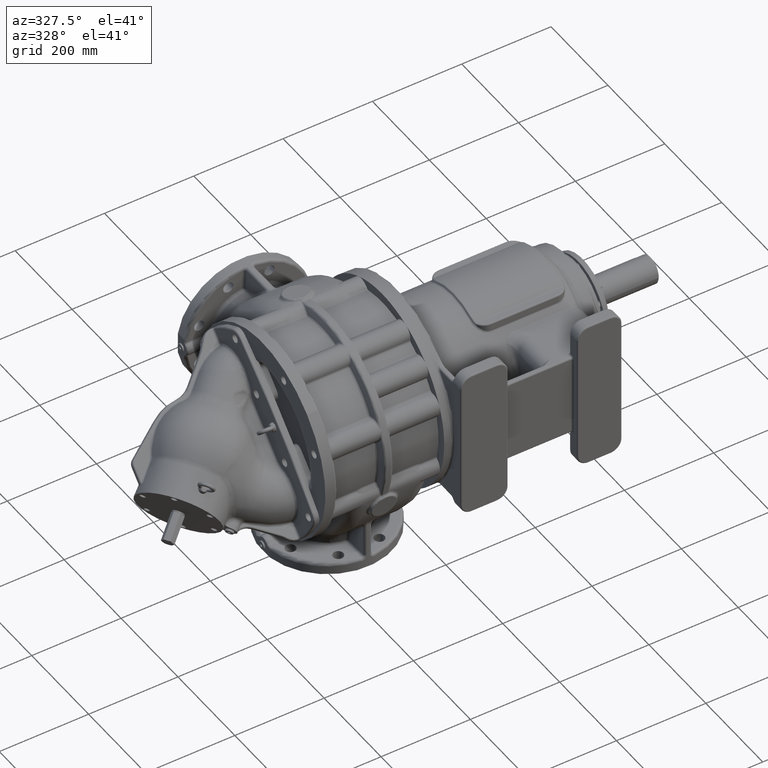
[diagram: clean part render]
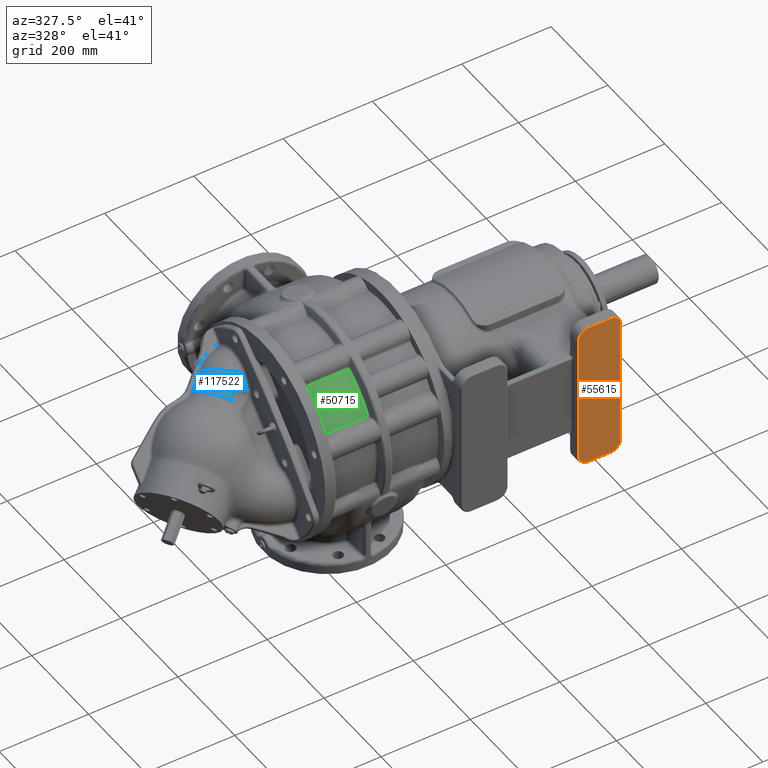
[diagram: same view with three faces highlighted in distinct colors, each labeled with its STEP entity id]
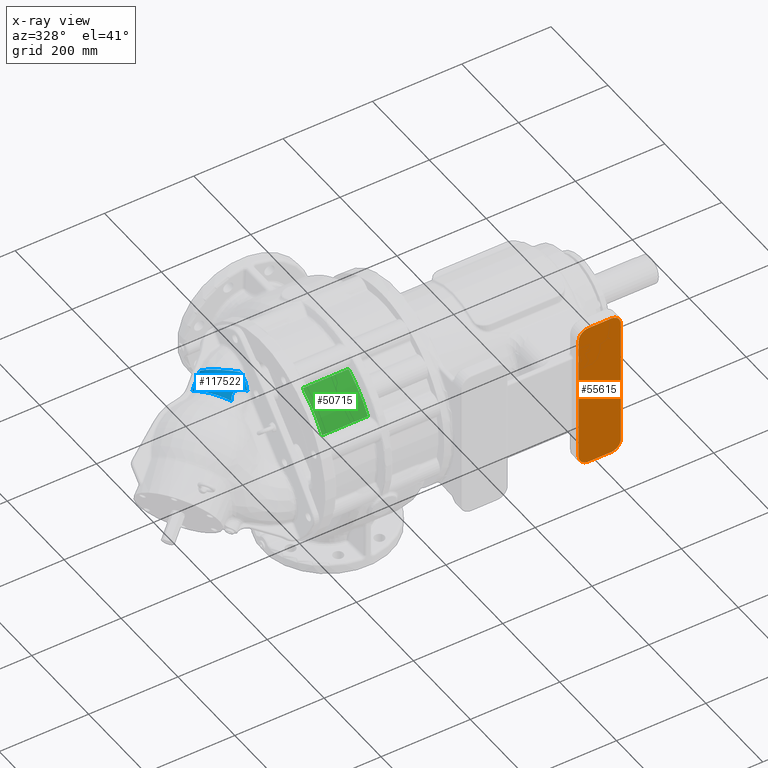
[diagram: x-ray of the same camera — body ghosted, the three highlighted faces saturated]
A machine part, auxiliary view with three faces highlighted in distinct colors.
The next image is the same camera in x-ray (body ghosted, the three faces saturated) — at least one of them is partly hidden behind the body in this view.
Their STEP definitions:

[orange] entity #55615 — the highlighted planar face has unit normal (0, -1, 0).
#5091=CARTESIAN_POINT('',(3.42E2,-2.43E2,1.45E2));
#5092=DIRECTION('',(0.E0,-1.E0,0.E0));
#5093=DIRECTION('',(1.E0,0.E0,0.E0));
#5094=AXIS2_PLACEMENT_3D('',#5091,#5092,#5093);
#5096=DIRECTION('',(0.E0,0.E0,1.E0));
#5097=VECTOR('',#5096,2.9E2);
#5098=CARTESIAN_POINT('',(3.64E2,-2.43E2,-1.45E2));
#5099=LINE('',#5098,#5097);
#5100=CARTESIAN_POINT('',(3.42E2,-2.43E2,-1.45E2));
#5101=DIRECTION('',(0.E0,-1.E0,0.E0));
#5102=DIRECTION('',(0.E0,0.E0,-1.E0));
#5103=AXIS2_PLACEMENT_3D('',#5100,#5101,#5102);
#5105=DIRECTION('',(1.E0,0.E0,0.E0));
#5106=VECTOR('',#5105,5.E1);
#5107=CARTESIAN_POINT('',(2.92E2,-2.43E2,-1.67E2));
#5108=LINE('',#5107,#5106);
#5109=CARTESIAN_POINT('',(2.92E2,-2.43E2,-1.45E2));
#5110=DIRECTION('',(0.E0,-1.E0,0.E0));
#5111=DIRECTION('',(-1.E0,0.E0,0.E0));
#5112=AXIS2_PLACEMENT_3D('',#5109,#5110,#5111);
#5114=DIRECTION('',(0.E0,0.E0,-1.E0));
#5115=VECTOR('',#5114,2.9E2);
#5116=CARTESIAN_POINT('',(2.7E2,-2.43E2,1.45E2));
#5117=LINE('',#5116,#5115);
#5118=CARTESIAN_POINT('',(2.92E2,-2.43E2,1.45E2));
#5119=DIRECTION('',(0.E0,-1.E0,0.E0));
#5120=DIRECTION('',(0.E0,0.E0,1.E0));
#5121=AXIS2_PLACEMENT_3D('',#5118,#5119,#5120);
#5123=DIRECTION('',(-1.E0,0.E0,0.E0));
#5124=VECTOR('',#5123,5.E1);
#5125=CARTESIAN_POINT('',(3.42E2,-2.43E2,1.67E2));
#5126=LINE('',#5125,#5124);
#46946=CARTESIAN_POINT('',(3.64E2,-2.43E2,1.45E2));
#46947=CARTESIAN_POINT('',(3.42E2,-2.43E2,1.67E2));
#46948=VERTEX_POINT('',#46946);
#46949=VERTEX_POINT('',#46947);
#46954=CARTESIAN_POINT('',(2.92E2,-2.43E2,1.67E2));
#46955=VERTEX_POINT('',#46954);
#46958=CARTESIAN_POINT('',(2.7E2,-2.43E2,1.45E2));
#46959=VERTEX_POINT('',#46958);
#46962=CARTESIAN_POINT('',(2.7E2,-2.43E2,-1.45E2));
#46963=VERTEX_POINT('',#46962);
#46966=CARTESIAN_POINT('',(2.92E2,-2.43E2,-1.67E2));
#46967=VERTEX_POINT('',#46966);
#46970=CARTESIAN_POINT('',(3.42E2,-2.43E2,-1.67E2));
#46971=VERTEX_POINT('',#46970);
#46974=CARTESIAN_POINT('',(3.64E2,-2.43E2,-1.45E2));
#46975=VERTEX_POINT('',#46974);
#55593=CARTESIAN_POINT('',(-3.E0,-2.43E2,0.E0));
#55594=DIRECTION('',(0.E0,-1.E0,0.E0));
#55595=DIRECTION('',(1.E0,0.E0,0.E0));
#55596=AXIS2_PLACEMENT_3D('',#55593,#55594,#55595);
#55597=PLANE('',#55596);
#55599=ORIENTED_EDGE('',*,*,#55598,.F.);
#55600=ORIENTED_EDGE('',*,*,#55583,.F.);
#55602=ORIENTED_EDGE('',*,*,#55601,.F.);
#55604=ORIENTED_EDGE('',*,*,#55603,.F.);
#55606=ORIENTED_EDGE('',*,*,#55605,.F.);
#55608=ORIENTED_EDGE('',*,*,#55607,.F.);
#55610=ORIENTED_EDGE('',*,*,#55609,.F.);
#55612=ORIENTED_EDGE('',*,*,#55611,.F.);
#55613=EDGE_LOOP('',(#55599,#55600,#55602,#55604,#55606,#55608,#55610,#55612));
#55614=FACE_OUTER_BOUND('',#55613,.F.);
#55615=ADVANCED_FACE('',(#55614),#55597,.T.);
#5095=CIRCLE('',#5094,2.2E1);
#5104=CIRCLE('',#5103,2.2E1);
#5113=CIRCLE('',#5112,2.2E1);
#5122=CIRCLE('',#5121,2.2E1);
#55583=EDGE_CURVE('',#46975,#46948,#5099,.T.);
#55598=EDGE_CURVE('',#46948,#46949,#5095,.T.);
#55601=EDGE_CURVE('',#46971,#46975,#5104,.T.);
#55603=EDGE_CURVE('',#46967,#46971,#5108,.T.);
#55605=EDGE_CURVE('',#46963,#46967,#5113,.T.);
#55607=EDGE_CURVE('',#46959,#46963,#5117,.T.);
#55609=EDGE_CURVE('',#46955,#46959,#5122,.T.);
#55611=EDGE_CURVE('',#46949,#46955,#5126,.T.);

[blue] entity #117522 — the highlighted cylindrical surface (edge-blend (fillet) strip) has radius 60.5 mm, axis along (-0.7071, -0.5, -0.5).
#34534=DIRECTION('',(7.071103438204E-1,4.999845492088E-1,5.000104121062E-1));
#34535=VECTOR('',#34534,4.293933916541E1);
#34536=CARTESIAN_POINT('',(-3.906508186997E2,7.795323040423E1,
9.232207201887E1));
#34537=LINE('',#34536,#34535);
#34538=CARTESIAN_POINT('',(-3.067088927335E2,4.207285389122E1,
1.276327744148E2));
#34539=CARTESIAN_POINT('',(-3.070646187511E2,4.222160139247E1,
1.277814046891E2));
#34540=CARTESIAN_POINT('',(-3.077956011878E2,4.250080000626E1,
1.280497601743E2));
#34541=CARTESIAN_POINT('',(-3.088598424946E2,4.297814157099E1,
1.284766161521E2));
#34542=CARTESIAN_POINT('',(-3.099352245202E2,4.345836031029E1,
1.288727851309E2));
#34543=CARTESIAN_POINT('',(-3.110086570762E2,4.395635171995E1,
1.292530665856E2));
#34544=CARTESIAN_POINT('',(-3.120821825168E2,4.446805910294E1,
1.296135744628E2));
#34545=CARTESIAN_POINT('',(-3.131537321817E2,4.499444101593E1,
1.299554442915E2));
#34546=CARTESIAN_POINT('',(-3.142225939211E2,4.553518796120E1,
1.302785665251E2));
#34547=CARTESIAN_POINT('',(-3.152880340938E2,4.609056524787E1,
1.305833421771E2));
#34548=CARTESIAN_POINT('',(-3.163493456631E2,4.666061424432E1,
1.308699749581E2));
#34549=CARTESIAN_POINT('',(-3.174059156227E2,4.724594221113E1,
1.311390870547E2));
#34550=CARTESIAN_POINT('',(-3.184571313612E2,4.784737736564E1,
1.313913997913E2));
#34551=CARTESIAN_POINT('',(-3.195034292136E2,4.846428513728E1,
1.316263171255E2));
#34552=CARTESIAN_POINT('',(-3.205450977491E2,4.909645985325E1,
1.318435647835E2));
#34553=CARTESIAN_POINT('',(-3.215817567316E2,4.974317177333E1,
1.320426414247E2));
#34554=CARTESIAN_POINT('',(-3.226127301317E2,5.040353560214E1,
1.322230794853E2));
#34555=CARTESIAN_POINT('',(-3.236374500180E2,5.107666278904E1,
1.323844599956E2));
#34556=CARTESIAN_POINT('',(-3.246551712507E2,5.176168396578E1,
1.325264984174E2));
#34557=CARTESIAN_POINT('',(-3.256659922437E2,5.245771041841E1,
1.326487331910E2));
#34558=CARTESIAN_POINT('',(-3.266690599502E2,5.316541831599E1,
1.327519067988E2));
#34559=CARTESIAN_POINT('',(-3.276630509262E2,5.388599537169E1,
1.328371435085E2));
#34560=CARTESIAN_POINT('',(-3.286482698861E2,5.461868950379E1,
1.329039489710E2));
#34561=CARTESIAN_POINT('',(-3.296242558782E2,5.536303707226E1,
1.329522546131E2));
#34562=CARTESIAN_POINT('',(-3.305905847198E2,5.611837647907E1,
1.329819113915E2));
#34563=CARTESIAN_POINT('',(-3.315468136055E2,5.688411404080E1,
1.329928493405E2));
#34564=CARTESIAN_POINT('',(-3.324924867673E2,5.765959228534E1,
1.329850141923E2));
#34565=CARTESIAN_POINT('',(-3.334274384647E2,5.844459306058E1,
1.329584637601E2));
#34566=CARTESIAN_POINT('',(-3.343518568514E2,5.923859478571E1,
1.329129768745E2));
#34567=CARTESIAN_POINT('',(-3.352646179551E2,6.004265859664E1,
1.328495138030E2));
#34568=CARTESIAN_POINT('',(-3.361655120254E2,6.085673537279E1,
1.327681572854E2));
#34569=CARTESIAN_POINT('',(-3.370544752627E2,6.168007913485E1,
1.326686631108E2));
#34570=CARTESIAN_POINT('',(-3.379313074093E2,6.251207657670E1,
1.325509251191E2));
#34571=CARTESIAN_POINT('',(-3.387958274419E2,6.335209201818E1,
1.324148454934E2));
#34572=CARTESIAN_POINT('',(-3.396478159938E2,6.419951256206E1,
1.322603754659E2));
#34573=CARTESIAN_POINT('',(-3.404868114158E2,6.505344661295E1,
1.320875380054E2));
#34574=CARTESIAN_POINT('',(-3.413122801440E2,6.591315665020E1,
1.318964935364E2));
#34575=CARTESIAN_POINT('',(-3.421240226584E2,6.677751155192E1,
1.316871840806E2));
#34576=CARTESIAN_POINT('',(-3.429196038084E2,6.764819329321E1,
1.314614794689E2));
#34577=CARTESIAN_POINT('',(-3.436999619641E2,6.852513435511E1,
1.312189623551E2));
#34578=CARTESIAN_POINT('',(-3.444657093347E2,6.940840150298E1,
1.309593532994E2));
#34579=CARTESIAN_POINT('',(-3.452175457367E2,7.029817324939E1,
1.306822748306E2));
#34580=CARTESIAN_POINT('',(-3.459557717625E2,7.119431673379E1,
1.303874456961E2));
#34581=CARTESIAN_POINT('',(-3.466793283880E2,7.209505366020E1,
1.300751712134E2));
#34582=CARTESIAN_POINT('',(-3.473873827856E2,7.299889481582E1,
1.297458191014E2));
#34583=CARTESIAN_POINT('',(-3.480790467856E2,7.390401042790E1,
1.293998880980E2));
#34584=CARTESIAN_POINT('',(-3.487537356266E2,7.480984494478E1,
1.290379582679E2));
#34585=CARTESIAN_POINT('',(-3.494102377306E2,7.571962182636E1,
1.286612638901E2));
#34586=CARTESIAN_POINT('',(-3.500500372062E2,7.663305706081E1,
1.282688554646E2));
#34587=CARTESIAN_POINT('',(-3.506740999876E2,7.755098184593E1,
1.278600762974E2));
#34588=CARTESIAN_POINT('',(-3.512826644550E2,7.847290738871E1,
1.274346201163E2));
#34589=CARTESIAN_POINT('',(-3.518748049282E2,7.939678098976E1,
1.269930760461E2));
#34590=CARTESIAN_POINT('',(-3.524499468631E2,8.032086901053E1,
1.265359572775E2));
#34591=CARTESIAN_POINT('',(-3.530071895777E2,8.124340361082E1,
1.260641746935E2));
#34592=CARTESIAN_POINT('',(-3.535469130517E2,8.216277128685E1,
1.255778287095E2));
#34593=CARTESIAN_POINT('',(-3.540670742470E2,8.308083334975E1,
1.250786238472E2));
#34594=CARTESIAN_POINT('',(-3.545666427217E2,8.399848738462E1,
1.245674979326E2));
#34595=CARTESIAN_POINT('',(-3.550463753861E2,8.491390302421E1,
1.240443520491E2));
#34596=CARTESIAN_POINT('',(-3.555083601357E2,8.582972347216E1,
1.235072785911E2));
#34597=CARTESIAN_POINT('',(-3.559557550050E2,8.675118395973E1,
1.229525408125E2));
#34598=CARTESIAN_POINT('',(-3.563917068043E2,8.768503261487E1,
1.223751428780E2));
#34599=CARTESIAN_POINT('',(-3.568105436447E2,8.861918344843E1,
1.217816738012E2));
#34600=CARTESIAN_POINT('',(-3.572053312216E2,8.953716647749E1,
1.211827926562E2));
#34601=CARTESIAN_POINT('',(-3.575723233381E2,9.042548033010E1,
1.205876539272E2));
#34602=CARTESIAN_POINT('',(-3.579136512539E2,9.129231143040E1,
1.199943340797E2));
#34603=CARTESIAN_POINT('',(-3.582311482574E2,9.214378557624E1,
1.194008046078E2));
#34604=CARTESIAN_POINT('',(-3.585284263323E2,9.298417910465E1,
1.188033145924E2));
#34605=CARTESIAN_POINT('',(-3.588074256345E2,9.381677311119E1,
1.181994840988E2));
#34606=CARTESIAN_POINT('',(-3.590700922632E2,9.464548681965E1,
1.175861781740E2));
#34607=CARTESIAN_POINT('',(-3.593172814880E2,9.547221640319E1,
1.169616633775E2));
#34608=CARTESIAN_POINT('',(-3.595477779505E2,9.629205776939E1,
1.163294570679E2));
#34609=CARTESIAN_POINT('',(-3.597609244120E2,9.710118617386E1,
1.156926051168E2));
#34610=CARTESIAN_POINT('',(-3.599560838882E2,9.789567203119E1,
1.150547047157E2));
#34611=CARTESIAN_POINT('',(-3.601332463771E2,9.867180336170E1,
1.144189823418E2));
#34612=CARTESIAN_POINT('',(-3.602385099786E2,9.917460279125E1,
1.140002277227E2));
#34613=CARTESIAN_POINT('',(-3.602880498761E2,9.942260832752E1,
1.137920008323E2));
#34615=CARTESIAN_POINT('',(-3.030927732645E2,3.115144953663E1,
1.141212738427E2));
#34616=CARTESIAN_POINT('',(-3.031903934249E2,3.141022214584E1,
1.145220706245E2));
#34617=CARTESIAN_POINT('',(-3.033863126996E2,3.193568165323E1,
1.153203282100E2));
#34618=CARTESIAN_POINT('',(-3.036821890587E2,3.274761393807E1,
1.165074665389E2));
#34619=CARTESIAN_POINT('',(-3.039798575750E2,3.358280848095E1,
1.176833801967E2));
#34620=CARTESIAN_POINT('',(-3.042791177896E2,3.444088160748E1,
1.188473107145E2));
#34621=CARTESIAN_POINT('',(-3.045797655073E2,3.532136186912E1,
1.199984301064E2));
#34622=CARTESIAN_POINT('',(-3.048816423679E2,3.622374280110E1,
1.211359327058E2));
#34623=CARTESIAN_POINT('',(-3.051845771500E2,3.714750550953E1,
1.222590462460E2));
#34624=CARTESIAN_POINT('',(-3.054884241163E2,3.809211395671E1,
1.233670289695E2));
#34625=CARTESIAN_POINT('',(-3.057929505566E2,3.905711023773E1,
1.244592655265E2));
#34626=CARTESIAN_POINT('',(-3.060980212404E2,4.004203316629E1,
1.255351675417E2));
#34627=CARTESIAN_POINT('',(-3.064031092387E2,4.104647230362E1,
1.265942504749E2));
#34628=CARTESIAN_POINT('',(-3.066071404314E2,4.172863182140E1,
1.272885318209E2));
#34629=CARTESIAN_POINT('',(-3.067088925559E2,4.207285370914E1,
1.276327742327E2));
#34631=CARTESIAN_POINT('',(-3.042684779075E2,1.903208250258E1,
9.278168293418E1));
#34632=CARTESIAN_POINT('',(-3.042388044406E2,1.926790211461E1,
9.332343437183E1));
#34633=CARTESIAN_POINT('',(-3.041790978671E2,1.975092645191E1,
9.440893556278E1));
#34634=CARTESIAN_POINT('',(-3.040894997228E2,2.051053852759E1,
9.604445967268E1));
#34635=CARTESIAN_POINT('',(-3.039994198267E2,2.130500300384E1,
9.768520229105E1));
#34636=CARTESIAN_POINT('',(-3.039090535732E2,2.213441375947E1,
9.933025910954E1));
#34637=CARTESIAN_POINT('',(-3.038184331646E2,2.299873077875E1,
1.009784153331E2));
#34638=CARTESIAN_POINT('',(-3.037276308518E2,2.389787793692E1,
1.026284849995E2));
#34639=CARTESIAN_POINT('',(-3.036367009669E2,2.483173952388E1,
1.042792671450E2));
#34640=CARTESIAN_POINT('',(-3.035457152876E2,2.580009950618E1,
1.059294628948E2));
#34641=CARTESIAN_POINT('',(-3.034547511255E2,2.680267377285E1,
1.075777397325E2));
#34642=CARTESIAN_POINT('',(-3.033638917600E2,2.783908482242E1,
1.092226936265E2));
#34643=CARTESIAN_POINT('',(-3.032732126904E2,2.890882540439E1,
1.108628074278E2));
#34644=CARTESIAN_POINT('',(-3.031827859053E2,3.001142915121E1,
1.124967134940E2));
#34645=CARTESIAN_POINT('',(-3.031227381170E2,3.076785407510E1,
1.135806603986E2));
#34646=CARTESIAN_POINT('',(-3.030927732645E2,3.115144953663E1,
1.141212738427E2));
#34648=CARTESIAN_POINT('',(-3.042684779075E2,1.903208250258E1,
9.278168293418E1));
#34649=CARTESIAN_POINT('',(-3.042955906449E2,1.906653093939E1,
9.289251834136E1));
#34650=CARTESIAN_POINT('',(-3.043529508839E2,1.913397855998E1,
9.311225685820E1));
#34651=CARTESIAN_POINT('',(-3.044491426580E2,1.923092538356E1,
9.343691025696E1));
#34652=CARTESIAN_POINT('',(-3.045541740988E2,1.932479656543E1,
9.375812332876E1));
#34653=CARTESIAN_POINT('',(-3.046682618141E2,1.941602510569E1,
9.407695167546E1));
#34654=CARTESIAN_POINT('',(-3.047917096834E2,1.950503447113E1,
9.439449847771E1));
#34655=CARTESIAN_POINT('',(-3.049251377442E2,1.959210925520E1,
9.471175575334E1));
#34656=CARTESIAN_POINT('',(-3.050693722887E2,1.967745460104E1,
9.502964847902E1));
#34657=CARTESIAN_POINT('',(-3.052256477570E2,1.976102245818E1,
9.534880876780E1));
#34658=CARTESIAN_POINT('',(-3.053941455056E2,1.984335936096E1,
9.567020691695E1));
#34659=CARTESIAN_POINT('',(-3.055757083358E2,1.992480531280E1,
9.599484067350E1));
#34660=CARTESIAN_POINT('',(-3.057709790869E2,2.000548942336E1,
9.632299789504E1));
#34661=CARTESIAN_POINT('',(-3.059796447633E2,2.008509782183E1,
9.665325312724E1));
#34662=CARTESIAN_POINT('',(-3.062013871319E2,2.016334417138E1,
9.698430856448E1));
#34663=CARTESIAN_POINT('',(-3.064359979087E2,2.023993366206E1,
9.731500559703E1));
#34664=CARTESIAN_POINT('',(-3.066844777318E2,2.031515039611E1,
9.764626622756E1));
#34665=CARTESIAN_POINT('',(-3.069478453032E2,2.038922429139E1,9.797881058E1));
#34666=CARTESIAN_POINT('',(-3.072271671921E2,2.046237847475E1,
9.831328402874E1));
#34667=CARTESIAN_POINT('',(-3.075234289026E2,2.053479050129E1,
9.865010922279E1));
#34668=CARTESIAN_POINT('',(-3.077330305772E2,2.058275406557E1,
9.887663949249E1));
#34669=CARTESIAN_POINT('',(-3.078408724135E2,2.060664155621E1,
9.899027769447E1));
#34671=CARTESIAN_POINT('',(-3.078408724135E2,2.060664155621E1,
9.899027769447E1));
#34672=CARTESIAN_POINT('',(-3.079336141916E2,2.062718862546E1,
9.908800711866E1));
#34673=CARTESIAN_POINT('',(-3.081223401599E2,2.066731194290E1,
9.928161794050E1));
#34674=CARTESIAN_POINT('',(-3.084148352703E2,2.072466177117E1,
9.956639456787E1));
#34675=CARTESIAN_POINT('',(-3.087172264942E2,2.077935496516E1,
9.984607544213E1));
#34676=CARTESIAN_POINT('',(-3.090298644308E2,2.083147727223E1,
1.001209178080E2));
#34677=CARTESIAN_POINT('',(-3.093532137775E2,2.088106689451E1,
1.003911300413E2));
#34678=CARTESIAN_POINT('',(-3.096877545292E2,2.092808677682E1,
1.006567673266E2));
#34679=CARTESIAN_POINT('',(-3.100341747306E2,2.097237613439E1,
1.009177576013E2));
#34680=CARTESIAN_POINT('',(-3.103931109430E2,2.101398427456E1,
1.011743396282E2));
#34681=CARTESIAN_POINT('',(-3.107652686189E2,2.105291482313E1,
1.014266699620E2));
#34682=CARTESIAN_POINT('',(-3.111513426833E2,2.108915048755E1,
1.016748281157E2));
#34683=CARTESIAN_POINT('',(-3.115519235832E2,2.112266588146E1,
1.019187975328E2));
#34684=CARTESIAN_POINT('',(-3.119674782908E2,2.115341552263E1,
1.021584479774E2));
#34685=CARTESIAN_POINT('',(-3.123986771725E2,2.118117636807E1,
1.023934325248E2));
#34686=CARTESIAN_POINT('',(-3.128460260132E2,2.120583803717E1,
1.026235078642E2));
#34687=CARTESIAN_POINT('',(-3.133119205516E2,2.122730225116E1,
1.028492014153E2));
#34688=CARTESIAN_POINT('',(-3.137984256890E2,2.124594192961E1,
1.030715128649E2));
#34689=CARTESIAN_POINT('',(-3.143082603282E2,2.126151269394E1,
1.032905968958E2));
#34690=CARTESIAN_POINT('',(-3.148438780832E2,2.127362223671E1,
1.035061704179E2));
#34691=CARTESIAN_POINT('',(-3.152203916246E2,2.127923794971E1,
1.036476532516E2));
#34692=CARTESIAN_POINT('',(-3.154133901481E2,2.128139557583E1,
1.037176145127E2));
#34694=CARTESIAN_POINT('',(-3.154133901481E2,2.128139557583E1,
1.037176145127E2));
#34695=CARTESIAN_POINT('',(-3.156552650206E2,2.128420874778E1,
1.038054557819E2));
#34696=CARTESIAN_POINT('',(-3.161553290170E2,2.128920489353E1,
1.039812726291E2));
#34697=CARTESIAN_POINT('',(-3.169553850840E2,2.129501520162E1,
1.042440055133E2));
#34698=CARTESIAN_POINT('',(-3.178043161464E2,2.129920879683E1,
1.045034460028E2));
#34699=CARTESIAN_POINT('',(-3.187024157137E2,2.130178296226E1,
1.047576765499E2));
#34700=CARTESIAN_POINT('',(-3.196477239289E2,2.130319867332E1,
1.050048467128E2));
#34701=CARTESIAN_POINT('',(-3.206410338694E2,2.130351966183E1,
1.052433822930E2));
#34702=CARTESIAN_POINT('',(-3.216857995910E2,2.130339902534E1,
1.054729781398E2));
#34703=CARTESIAN_POINT('',(-3.227845306907E2,2.130314011110E1,
1.056923847324E2));
#34704=CARTESIAN_POINT('',(-3.239398432124E2,2.130316280675E1,
1.059003379142E2));
#34705=CARTESIAN_POINT('',(-3.251542626095E2,2.130423471264E1,
1.060957569659E2));
#34706=CARTESIAN_POINT('',(-3.264301765449E2,2.130676845935E1,
1.062768867941E2));
#34707=CARTESIAN_POINT('',(-3.273235969893E2,2.130994902729E1,
1.063871073253E2));
#34708=CARTESIAN_POINT('',(-3.277808615368E2,2.131203307466E1,
1.064392253887E2));
#34710=CARTESIAN_POINT('',(-3.277808615368E2,2.131203307466E1,
1.064392253887E2));
#34711=CARTESIAN_POINT('',(-3.279198133208E2,2.131261198639E1,
1.064549991585E2));
#34712=CARTESIAN_POINT('',(-3.281970571268E2,2.131176481380E1,
1.064832960463E2));
#34713=CARTESIAN_POINT('',(-3.286107844559E2,2.130435273577E1,
1.065160465191E2));
#34714=CARTESIAN_POINT('',(-3.290227810338E2,2.129078333382E1,
1.065393455670E2));
#34715=CARTESIAN_POINT('',(-3.294333075251E2,2.127097138048E1,
1.065533226514E2));
#34716=CARTESIAN_POINT('',(-3.298426463393E2,2.124483114156E1,
1.065580976654E2));
#34717=CARTESIAN_POINT('',(-3.302511264003E2,2.121224819641E1,
1.065537494282E2));
#34718=CARTESIAN_POINT('',(-3.306588006747E2,2.117312013225E1,
1.065403384783E2));
#34719=CARTESIAN_POINT('',(-3.310653457152E2,2.112736135600E1,
1.065179138245E2));
#34720=CARTESIAN_POINT('',(-3.314706087061E2,2.107501952389E1,
1.064866800349E2));
#34721=CARTESIAN_POINT('',(-3.318741688675E2,2.101600835376E1,
1.064466747988E2));
#34722=CARTESIAN_POINT('',(-3.322754814477E2,2.095029781075E1,
1.063979917724E2));
#34723=CARTESIAN_POINT('',(-3.326739937503E2,2.087789538708E1,
1.063407660517E2));
#34724=CARTESIAN_POINT('',(-3.330696568017E2,2.079874426331E1,
1.062750871820E2));
#34725=CARTESIAN_POINT('',(-3.334624993800E2,2.071275968188E1,
1.062010114953E2));
#34726=CARTESIAN_POINT('',(-3.338525063506E2,2.061989081781E1,
1.061186222835E2));
#34727=CARTESIAN_POINT('',(-3.342390474235E2,2.052026964766E1,
1.060281658082E2));
#34728=CARTESIAN_POINT('',(-3.346214135786E2,2.041394015616E1,
1.059297915510E2));
#34729=CARTESIAN_POINT('',(-3.349991281702E2,2.030097938661E1,
1.058236899159E2));
#34730=CARTESIAN_POINT('',(-3.353724687372E2,2.018125359260E1,
1.057098479721E2));
#34731=CARTESIAN_POINT('',(-3.357416275697E2,2.005462851879E1,
1.055882403584E2));
#34732=CARTESIAN_POINT('',(-3.361067058350E2,1.992103461006E1,
1.054588981219E2));
#34733=CARTESIAN_POINT('',(-3.364675469238E2,1.978047713136E1,
1.053219157227E2));
#34734=CARTESIAN_POINT('',(-3.368240833803E2,1.963284077850E1,
1.051772586531E2));
#34735=CARTESIAN_POINT('',(-3.371757186325E2,1.947826581260E1,
1.050251385731E2));
#34736=CARTESIAN_POINT('',(-3.375215654159E2,1.931706969494E1,
1.048659380644E2));
#34737=CARTESIAN_POINT('',(-3.378607534579E2,1.914968529130E1,
1.047001517772E2));
#34738=CARTESIAN_POINT('',(-3.381935030536E2,1.897602926421E1,
1.045277554238E2));
#34739=CARTESIAN_POINT('',(-3.385201897059E2,1.879578573694E1,
1.043484805958E2));
#34740=CARTESIAN_POINT('',(-3.388411376392E2,1.860867609294E1,
1.041620877823E2));
#34741=CARTESIAN_POINT('',(-3.391562960523E2,1.841463037510E1,
1.039685366626E2));
#34742=CARTESIAN_POINT('',(-3.394656377614E2,1.821361093138E1,
1.037678115618E2));
#34743=CARTESIAN_POINT('',(-3.397689963770E2,1.800565419283E1,
1.035599617281E2));
#34744=CARTESIAN_POINT('',(-3.400655116924E2,1.779125274480E1,
1.033454831312E2));
#34745=CARTESIAN_POINT('',(-3.403542984698E2,1.757098753553E1,
1.031249521362E2));
#34746=CARTESIAN_POINT('',(-3.406349727167E2,1.734507252947E1,
1.028985686406E2));
#34747=CARTESIAN_POINT('',(-3.409081181823E2,1.711294140152E1,
1.026657410418E2));
#34748=CARTESIAN_POINT('',(-3.411742284926E2,1.687407239501E1,
1.024259117576E2));
#34749=CARTESIAN_POINT('',(-3.414333756367E2,1.662834983141E1,
1.021789207275E2));
#34750=CARTESIAN_POINT('',(-3.416850858539E2,1.637616885934E1,
1.019251110272E2));
#34751=CARTESIAN_POINT('',(-3.419288529662E2,1.611787777714E1,
1.016647674174E2));
#34752=CARTESIAN_POINT('',(-3.421643184922E2,1.585356385843E1,
1.013978989549E2));
#34753=CARTESIAN_POINT('',(-3.423912463811E2,1.558318699442E1,
1.011243735225E2));
#34754=CARTESIAN_POINT('',(-3.426095920795E2,1.530681064680E1,
1.008441569310E2));
#34755=CARTESIAN_POINT('',(-3.428194398881E2,1.502436090829E1,
1.005570649187E2));
#34756=CARTESIAN_POINT('',(-3.430207702209E2,1.473572407097E1,
1.002628570084E2));
#34757=CARTESIAN_POINT('',(-3.432133517705E2,1.444076044861E1,
9.996124463820E1));
#34758=CARTESIAN_POINT('',(-3.433968361985E2,1.413958815680E1,
9.965218732050E1));
#34759=CARTESIAN_POINT('',(-3.435709309328E2,1.383238134983E1,
9.933568944853E1));
#34760=CARTESIAN_POINT('',(-3.437354882415E2,1.351932217412E1,
9.901175514070E1));
#34761=CARTESIAN_POINT('',(-3.438903212163E2,1.320026689973E1,
9.868002723356E1));
#34762=CARTESIAN_POINT('',(-3.440351912111E2,1.287507247413E1,
9.834012429093E1));
#34763=CARTESIAN_POINT('',(-3.441699100983E2,1.254383258540E1,
9.799189715958E1));
#34764=CARTESIAN_POINT('',(-3.442942489789E2,1.220696645737E1,
9.763552802287E1));
#34765=CARTESIAN_POINT('',(-3.444077564764E2,1.186479294692E1,
9.727106450087E1));
#34766=CARTESIAN_POINT('',(-3.445098764830E2,1.151775590599E1,
9.689866356124E1));
#34767=CARTESIAN_POINT('',(-3.446003937456E2,1.116645250709E1,
9.651865760935E1));
#34768=CARTESIAN_POINT('',(-3.446790949213E2,1.081149439434E1,
9.613139043364E1));
#34769=CARTESIAN_POINT('',(-3.447455822856E2,1.045351150153E1,
9.573720270339E1));
#34770=CARTESIAN_POINT('',(-3.447815303389E2,1.021344766005E1,
9.547023852911E1));
#34771=CARTESIAN_POINT('',(-3.447973353312E2,1.009305135787E1,
9.533563299592E1));
#34773=CARTESIAN_POINT('',(-3.484784450716E2,5.531727983645E1,
5.531727983646E1));
#34774=DIRECTION('',(-7.071067811866E-1,-5.E-1,-5.E-1));
#34775=DIRECTION('',(6.084478909683E-2,-7.475079087391E-1,6.614603827987E-1));
#34776=AXIS2_PLACEMENT_3D('',#34773,#34774,#34775);
#34778=CARTESIAN_POINT('',(-3.602879678191E2,9.942223654017E1,
1.137921886905E2));
#43099=CARTESIAN_POINT('',(-3.067088925559E2,4.207285370914E1,
1.276327742327E2));
#49184=VERTEX_POINT('',#34631);
#49185=VERTEX_POINT('',#34646);
#49187=VERTEX_POINT('',#43099);
#49194=VERTEX_POINT('',#34778);
#49197=CARTESIAN_POINT('',(-3.906508186997E2,7.795323040423E1,
9.232207201887E1));
#49198=VERTEX_POINT('',#49197);
#49294=VERTEX_POINT('',#34694);
#49295=VERTEX_POINT('',#34708);
#49296=VERTEX_POINT('',#34671);
#49300=VERTEX_POINT('',#34771);
#117499=CARTESIAN_POINT('',(-2.674332078832E2,1.126249166352E2,
1.126249166352E2));
#117500=DIRECTION('',(-7.071067811866E-1,-5.E-1,-5.E-1));
#117501=DIRECTION('',(7.071067811865E-1,-5.E-1,-5.E-1));
#117502=AXIS2_PLACEMENT_3D('',#117499,#117500,#117501);
#117503=CYLINDRICAL_SURFACE('',#117502,6.05E1);
#117504=ORIENTED_EDGE('',*,*,#117490,.T.);
#117506=ORIENTED_EDGE('',*,*,#117505,.F.);
#117508=ORIENTED_EDGE('',*,*,#117507,.F.);
#117510=ORIENTED_EDGE('',*,*,#117509,.F.);
#117512=ORIENTED_EDGE('',*,*,#117511,.T.);
#117514=ORIENTED_EDGE('',*,*,#117513,.T.);
#117516=ORIENTED_EDGE('',*,*,#117515,.T.);
#117518=ORIENTED_EDGE('',*,*,#117517,.T.);
#117519=ORIENTED_EDGE('',*,*,#117420,.T.);
#117520=EDGE_LOOP('',(#117504,#117506,#117508,#117510,#117512,#117514,#117516,
#117518,#117519));
#117521=FACE_OUTER_BOUND('',#117520,.F.);
#117522=ADVANCED_FACE('',(#117521),#117503,.T.);
#34614=B_SPLINE_CURVE_WITH_KNOTS('',3,(#34538,#34539,#34540,#34541,#34542,
#34543,#34544,#34545,#34546,#34547,#34548,#34549,#34550,#34551,#34552,#34553,
#34554,#34555,#34556,#34557,#34558,#34559,#34560,#34561,#34562,#34563,#34564,
#34565,#34566,#34567,#34568,#34569,#34570,#34571,#34572,#34573,#34574,#34575,
#34576,#34577,#34578,#34579,#34580,#34581,#34582,#34583,#34584,#34585,#34586,
#34587,#34588,#34589,#34590,#34591,#34592,#34593,#34594,#34595,#34596,#34597,
#34598,#34599,#34600,#34601,#34602,#34603,#34604,#34605,#34606,#34607,#34608,
#34609,#34610,#34611,#34612,#34613),.UNSPECIFIED.,.F.,.F.,(4,1,1,1,1,1,1,1,1,1,
1,1,1,1,1,1,1,1,1,1,1,1,1,1,1,1,1,1,1,1,1,1,1,1,1,1,1,1,1,1,1,1,1,1,1,1,1,1,1,1,
1,1,1,1,1,1,1,1,1,1,1,1,1,1,1,1,1,1,1,1,1,1,1,4),(0.E0,1.369863013699E-2,
2.739726027397E-2,4.109589041096E-2,5.479452054795E-2,6.849315068493E-2,
8.219178082192E-2,9.589041095890E-2,1.095890410959E-1,1.232876712329E-1,
1.369863013699E-1,1.506849315068E-1,1.643835616438E-1,1.780821917808E-1,
1.917808219178E-1,2.054794520548E-1,2.191780821918E-1,2.328767123288E-1,
2.465753424658E-1,2.602739726027E-1,2.739726027397E-1,2.876712328767E-1,
3.013698630137E-1,3.150684931507E-1,3.287671232877E-1,3.424657534247E-1,
3.561643835616E-1,3.698630136986E-1,3.835616438356E-1,3.972602739726E-1,
4.109589041096E-1,4.246575342466E-1,4.383561643836E-1,4.520547945205E-1,
4.657534246575E-1,4.794520547945E-1,4.931506849315E-1,5.068493150685E-1,
5.205479452055E-1,5.342465753425E-1,5.479452054795E-1,5.616438356164E-1,
5.753424657534E-1,5.890410958904E-1,6.027397260274E-1,6.164383561644E-1,
6.301369863014E-1,6.438356164384E-1,6.575342465753E-1,6.712328767123E-1,
6.849315068493E-1,6.986301369863E-1,7.123287671233E-1,7.260273972603E-1,
7.397260273973E-1,7.534246575342E-1,7.671232876712E-1,7.808219178082E-1,
7.945205479452E-1,8.082191780822E-1,8.219178082192E-1,8.356164383562E-1,
8.493150684932E-1,8.630136986301E-1,8.767123287671E-1,8.904109589041E-1,
9.041095890411E-1,9.178082191781E-1,9.315068493151E-1,9.452054794521E-1,
9.589041095890E-1,9.726027397260E-1,9.863013698630E-1,1.E0),.UNSPECIFIED.);
#34630=B_SPLINE_CURVE_WITH_KNOTS('',3,(#34615,#34616,#34617,#34618,#34619,
#34620,#34621,#34622,#34623,#34624,#34625,#34626,#34627,#34628,#34629),
.UNSPECIFIED.,.F.,.F.,(4,1,1,1,1,1,1,1,1,1,1,1,4),(0.E0,8.333333333333E-2,
1.666666666667E-1,2.5E-1,3.333333333333E-1,4.166666666667E-1,5.E-1,
5.833333333333E-1,6.666666666667E-1,7.5E-1,8.333333333333E-1,9.166666666667E-1,
1.E0),.UNSPECIFIED.);
#34647=B_SPLINE_CURVE_WITH_KNOTS('',3,(#34631,#34632,#34633,#34634,#34635,
#34636,#34637,#34638,#34639,#34640,#34641,#34642,#34643,#34644,#34645,#34646),
.UNSPECIFIED.,.F.,.F.,(4,1,1,1,1,1,1,1,1,1,1,1,1,4),(0.E0,7.692307692308E-2,
1.538461538462E-1,2.307692307692E-1,3.076923076923E-1,3.846153846154E-1,
4.615384615385E-1,5.384615384615E-1,6.153846153846E-1,6.923076923077E-1,
7.692307692308E-1,8.461538461538E-1,9.230769230769E-1,1.E0),.UNSPECIFIED.);
#34670=B_SPLINE_CURVE_WITH_KNOTS('',3,(#34648,#34649,#34650,#34651,#34652,
#34653,#34654,#34655,#34656,#34657,#34658,#34659,#34660,#34661,#34662,#34663,
#34664,#34665,#34666,#34667,#34668,#34669),.UNSPECIFIED.,.F.,.F.,(4,1,1,1,1,1,1,
1,1,1,1,1,1,1,1,1,1,1,1,4),(0.E0,5.263157894737E-2,1.052631578947E-1,
1.578947368421E-1,2.105263157895E-1,2.631578947368E-1,3.157894736842E-1,
3.684210526316E-1,4.210526315789E-1,4.736842105263E-1,5.263157894737E-1,
5.789473684211E-1,6.315789473684E-1,6.842105263158E-1,7.368421052632E-1,
7.894736842105E-1,8.421052631579E-1,8.947368421053E-1,9.473684210526E-1,1.E0),
.UNSPECIFIED.);
#34693=B_SPLINE_CURVE_WITH_KNOTS('',3,(#34671,#34672,#34673,#34674,#34675,
#34676,#34677,#34678,#34679,#34680,#34681,#34682,#34683,#34684,#34685,#34686,
#34687,#34688,#34689,#34690,#34691,#34692),.UNSPECIFIED.,.F.,.F.,(4,1,1,1,1,1,1,
1,1,1,1,1,1,1,1,1,1,1,1,4),(0.E0,5.263157894737E-2,1.052631578947E-1,
1.578947368421E-1,2.105263157895E-1,2.631578947368E-1,3.157894736842E-1,
3.684210526316E-1,4.210526315789E-1,4.736842105263E-1,5.263157894737E-1,
5.789473684211E-1,6.315789473684E-1,6.842105263158E-1,7.368421052632E-1,
7.894736842105E-1,8.421052631579E-1,8.947368421053E-1,9.473684210526E-1,1.E0),
.UNSPECIFIED.);
#34709=B_SPLINE_CURVE_WITH_KNOTS('',3,(#34694,#34695,#34696,#34697,#34698,
#34699,#34700,#34701,#34702,#34703,#34704,#34705,#34706,#34707,#34708),
.UNSPECIFIED.,.F.,.F.,(4,1,1,1,1,1,1,1,1,1,1,1,4),(0.E0,8.333333333333E-2,
1.666666666667E-1,2.5E-1,3.333333333333E-1,4.166666666667E-1,5.E-1,
5.833333333333E-1,6.666666666667E-1,7.5E-1,8.333333333333E-1,9.166666666667E-1,
1.E0),.UNSPECIFIED.);
#34772=B_SPLINE_CURVE_WITH_KNOTS('',3,(#34710,#34711,#34712,#34713,#34714,
#34715,#34716,#34717,#34718,#34719,#34720,#34721,#34722,#34723,#34724,#34725,
#34726,#34727,#34728,#34729,#34730,#34731,#34732,#34733,#34734,#34735,#34736,
#34737,#34738,#34739,#34740,#34741,#34742,#34743,#34744,#34745,#34746,#34747,
#34748,#34749,#34750,#34751,#34752,#34753,#34754,#34755,#34756,#34757,#34758,
#34759,#34760,#34761,#34762,#34763,#34764,#34765,#34766,#34767,#34768,#34769,
#34770,#34771),.UNSPECIFIED.,.F.,.F.,(4,1,1,1,1,1,1,1,1,1,1,1,1,1,1,1,1,1,1,1,1,
1,1,1,1,1,1,1,1,1,1,1,1,1,1,1,1,1,1,1,1,1,1,1,1,1,1,1,1,1,1,1,1,1,1,1,1,1,1,4),(
0.E0,1.694915254237E-2,3.389830508475E-2,5.084745762712E-2,6.779661016949E-2,
8.474576271186E-2,1.016949152542E-1,1.186440677966E-1,1.355932203390E-1,
1.525423728814E-1,1.694915254237E-1,1.864406779661E-1,2.033898305085E-1,
2.203389830508E-1,2.372881355932E-1,2.542372881356E-1,2.711864406780E-1,
2.881355932203E-1,3.050847457627E-1,3.220338983051E-1,3.389830508475E-1,
3.559322033898E-1,3.728813559322E-1,3.898305084746E-1,4.067796610169E-1,
4.237288135593E-1,4.406779661017E-1,4.576271186441E-1,4.745762711864E-1,
4.915254237288E-1,5.084745762712E-1,5.254237288136E-1,5.423728813559E-1,
5.593220338983E-1,5.762711864407E-1,5.932203389831E-1,6.101694915254E-1,
6.271186440678E-1,6.440677966102E-1,6.610169491525E-1,6.779661016949E-1,
6.949152542373E-1,7.118644067797E-1,7.288135593220E-1,7.457627118644E-1,
7.627118644068E-1,7.796610169492E-1,7.966101694915E-1,8.135593220339E-1,
8.305084745763E-1,8.474576271186E-1,8.644067796610E-1,8.813559322034E-1,
8.983050847458E-1,9.152542372881E-1,9.322033898305E-1,9.491525423729E-1,
9.661016949153E-1,9.830508474576E-1,1.E0),.UNSPECIFIED.);
#34777=CIRCLE('',#34776,6.05E1);
#117420=EDGE_CURVE('',#49300,#49198,#34777,.T.);
#117490=EDGE_CURVE('',#49198,#49194,#34537,.T.);
#117505=EDGE_CURVE('',#49187,#49194,#34614,.T.);
#117507=EDGE_CURVE('',#49185,#49187,#34630,.T.);
#117509=EDGE_CURVE('',#49184,#49185,#34647,.T.);
#117511=EDGE_CURVE('',#49184,#49296,#34670,.T.);
#117513=EDGE_CURVE('',#49296,#49294,#34693,.T.);
#117515=EDGE_CURVE('',#49294,#49295,#34709,.T.);
#117517=EDGE_CURVE('',#49295,#49300,#34772,.T.);

[green] entity #50715 — the highlighted cylindrical surface (partial cylindrical patch) has radius 197.5 mm, axis along (1, 0, 0).
#900=CARTESIAN_POINT('',(-2.58E2,2.289516946803E-13,1.989519660128E-13));
#901=DIRECTION('',(1.E0,0.E0,0.E0));
#902=DIRECTION('',(0.E0,-5.135048182977E-1,8.580867098289E-1));
#903=AXIS2_PLACEMENT_3D('',#900,#901,#902);
#905=DIRECTION('',(1.E0,1.759528607363E-14,1.163782700933E-14));
#906=VECTOR('',#905,1.025717081995E2);
#907=CARTESIAN_POINT('',(-2.58E2,-1.014172016138E2,1.694721251912E2));
#908=LINE('',#907,#906);
#909=CARTESIAN_POINT('',(-1.554282918004E2,2.101095775608E-13,
1.989519660128E-13));
#910=DIRECTION('',(-1.E0,0.E0,0.E0));
#911=DIRECTION('',(0.E0,-8.580867098289E-1,5.135048182977E-1));
#912=AXIS2_PLACEMENT_3D('',#909,#910,#911);
#914=DIRECTION('',(-1.E0,1.025237141297E-14,1.524001155983E-14));
#915=VECTOR('',#914,1.025717081996E2);
#916=CARTESIAN_POINT('',(-1.554282918004E2,-1.694721251912E2,1.014172016138E2));
#917=LINE('',#916,#915);
#923=CARTESIAN_POINT('',(-1.554282918005E2,-1.014172016138E2,1.694721251912E2));
#48217=VERTEX_POINT('',#923);
#48219=CARTESIAN_POINT('',(-1.554282918004E2,-1.694721251912E2,
1.014172016138E2));
#48220=VERTEX_POINT('',#48219);
#48702=CARTESIAN_POINT('',(-2.58E2,-1.014172016138E2,1.694721251912E2));
#48703=CARTESIAN_POINT('',(-2.58E2,-1.694721251912E2,1.014172016138E2));
#48704=VERTEX_POINT('',#48702);
#48705=VERTEX_POINT('',#48703);
#50701=CARTESIAN_POINT('',(-1.385E2,2.069999008056E-13,1.989519660128E-13));
#50702=DIRECTION('',(1.E0,0.E0,0.E0));
#50703=DIRECTION('',(0.E0,0.E0,1.E0));
#50704=AXIS2_PLACEMENT_3D('',#50701,#50702,#50703);
#50705=CYLINDRICAL_SURFACE('',#50704,1.975E2);
#50706=ORIENTED_EDGE('',*,*,#50634,.F.);
#50708=ORIENTED_EDGE('',*,*,#50707,.T.);
#50710=ORIENTED_EDGE('',*,*,#50709,.F.);
#50712=ORIENTED_EDGE('',*,*,#50711,.T.);
#50713=EDGE_LOOP('',(#50706,#50708,#50710,#50712));
#50714=FACE_OUTER_BOUND('',#50713,.F.);
#50715=ADVANCED_FACE('',(#50714),#50705,.T.);
#904=CIRCLE('',#903,1.975E2);
#913=CIRCLE('',#912,1.975E2);
#50634=EDGE_CURVE('',#48704,#48705,#904,.T.);
#50707=EDGE_CURVE('',#48704,#48217,#908,.T.);
#50709=EDGE_CURVE('',#48220,#48217,#913,.T.);
#50711=EDGE_CURVE('',#48220,#48705,#917,.T.);